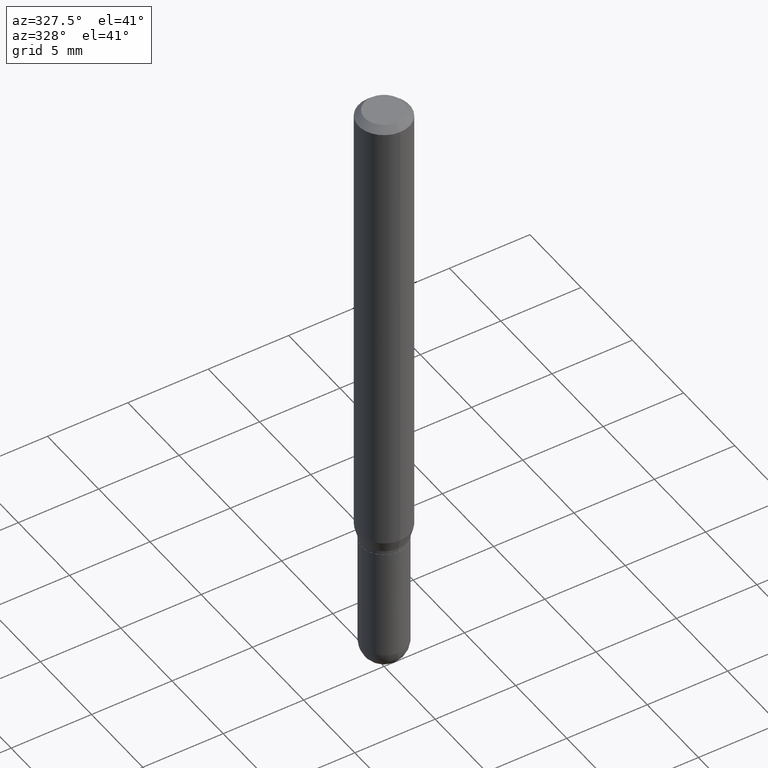
[diagram: clean part render]
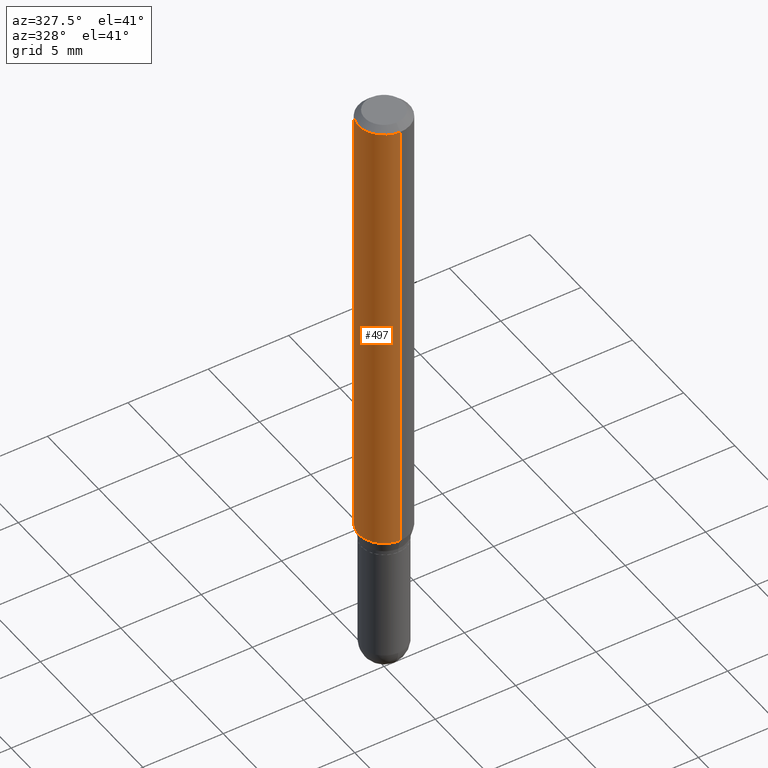
[diagram: same view with one face highlighted and labeled with its STEP entity id]
A machine part, auxiliary view. The second image highlights one B-rep face of the part: STEP entity #497.
In plain terms, the highlighted cylindrical surface (edge-blend (fillet) strip) has radius 1.5875 mm, axis along (-0, 0, 1).
Its self-contained STEP definition (entity closure, byte-faithful):
#5 = ORIENTED_EDGE ( 'NONE', *, *, #120, .F. ) ;
#13 = CYLINDRICAL_SURFACE ( 'NONE', #329, 0.06250000000000000000 ) ;
#15 = VECTOR ( 'NONE', #208, 39.37007874015748143 ) ;
#18 = EDGE_CURVE ( 'NONE', #38, #347, #21, .T. ) ;
#21 = LINE ( 'NONE', #50, #29 ) ;
#29 = VECTOR ( 'NONE', #377, 39.37007874015748143 ) ;
#37 = CARTESIAN_POINT ( 'NONE',  ( -4.364351673553912750E-16, -0.06250000000000005551, -0.01500000000000011047 ) ) ;
#38 = VERTEX_POINT ( 'NONE', #251 ) ;
#40 = ORIENTED_EDGE ( 'NONE', *, *, #484, .T. ) ;
#50 = CARTESIAN_POINT ( 'NONE',  ( -4.364351673553916201E-16, -0.06250000000000000000, 2.182077805218689648E-16 ) ) ;
#52 = CIRCLE ( 'NONE', #342, 0.06250000000000000000 ) ;
#57 = CARTESIAN_POINT ( 'NONE',  ( 3.668367501448828558E-31, -5.236986732524968973E-17, -0.01500000000000032904 ) ) ;
#83 = DIRECTION ( 'NONE',  ( -6.982962677686265922E-15, -1.000000000000000000, 3.491324488349903437E-15 ) ) ;
#111 = LINE ( 'NONE', #275, #15 ) ;
#120 = EDGE_CURVE ( 'NONE', #288, #347, #248, .T. ) ;
#125 = CARTESIAN_POINT ( 'NONE',  ( 0.000000000000000000, 0.000000000000000000, 0.000000000000000000 ) ) ;
#168 = FACE_OUTER_BOUND ( 'NONE', #441, .T. ) ;
#173 = AXIS2_PLACEMENT_3D ( 'NONE', #57, #218, #415 ) ;
#193 = CARTESIAN_POINT ( 'NONE',  ( 4.440892098500901277E-16, 0.06249999999999603789, -1.132009618943234264 ) ) ;
#208 = DIRECTION ( 'NONE',  ( -2.445578334299165649E-29, 3.491324488349903437E-15, 1.000000000000000000 ) ) ;
#218 = DIRECTION ( 'NONE',  ( -2.445578334299165369E-29, 3.491324488349903437E-15, 1.000000000000000000 ) ) ;
#248 = CIRCLE ( 'NONE', #173, 0.06250000000000000000 ) ;
#249 = CARTESIAN_POINT ( 'NONE',  ( 2.768418198305827226E-29, -3.952212903664154629E-15, -1.132009618943233820 ) ) ;
#251 = CARTESIAN_POINT ( 'NONE',  ( -4.364351673553640100E-16, -0.06250000000000395517, -1.132009618943233598 ) ) ;
#268 = CARTESIAN_POINT ( 'NONE',  ( 4.440892098500904235E-16, 0.06249999999999995143, -0.01500000000000054588 ) ) ;
#275 = CARTESIAN_POINT ( 'NONE',  ( 4.440892098500625669E-16, 0.06250000000000000000, -2.182077805218689648E-16 ) ) ;
#288 = VERTEX_POINT ( 'NONE', #268 ) ;
#289 = DIRECTION ( 'NONE',  ( -2.445578334299165369E-29, 3.491324488349903437E-15, 1.000000000000000000 ) ) ;
#290 = ORIENTED_EDGE ( 'NONE', *, *, #18, .T. ) ;
#327 = DIRECTION ( 'NONE',  ( -6.982962677686265922E-15, -1.000000000000000000, 4.370956789862821150E-15 ) ) ;
#329 = AXIS2_PLACEMENT_3D ( 'NONE', #125, #289, #83 ) ;
#342 = AXIS2_PLACEMENT_3D ( 'NONE', #249, #408, #327 ) ;
#347 = VERTEX_POINT ( 'NONE', #37 ) ;
#350 = ORIENTED_EDGE ( 'NONE', *, *, #475, .F. ) ;
#377 = DIRECTION ( 'NONE',  ( -2.445578334299165649E-29, 3.491324488349903437E-15, 1.000000000000000000 ) ) ;
#408 = DIRECTION ( 'NONE',  ( -2.445578334299165369E-29, 3.491324488349903437E-15, 1.000000000000000000 ) ) ;
#415 = DIRECTION ( 'NONE',  ( -6.982962677686265922E-15, -1.000000000000000000, 3.483106191921935554E-15 ) ) ;
#438 = VERTEX_POINT ( 'NONE', #193 ) ;
#441 = EDGE_LOOP ( 'NONE', ( #350, #40, #290, #5 ) ) ;
#475 = EDGE_CURVE ( 'NONE', #438, #288, #111, .T. ) ;
#484 = EDGE_CURVE ( 'NONE', #438, #38, #52, .T. ) ;
#497 = ADVANCED_FACE ( 'NONE', ( #168 ), #13, .T. ) ;